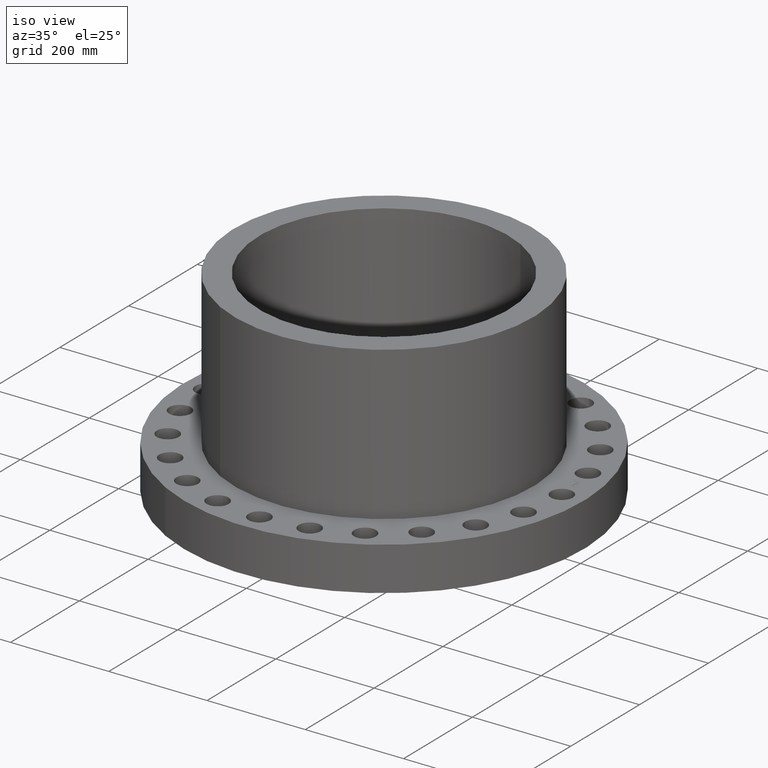
[diagram: clean part render]
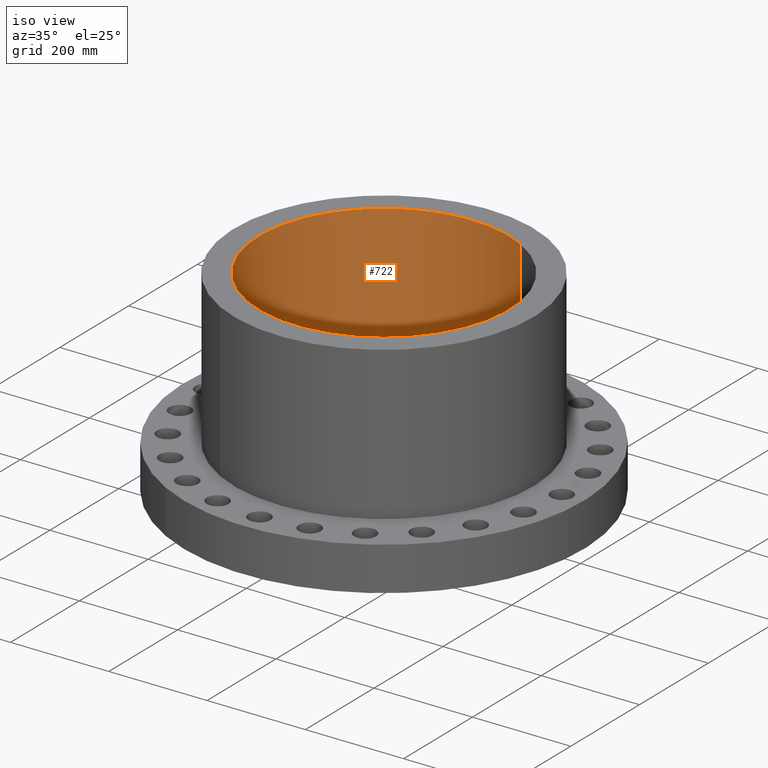
[diagram: same view with one face highlighted and labeled with its STEP entity id]
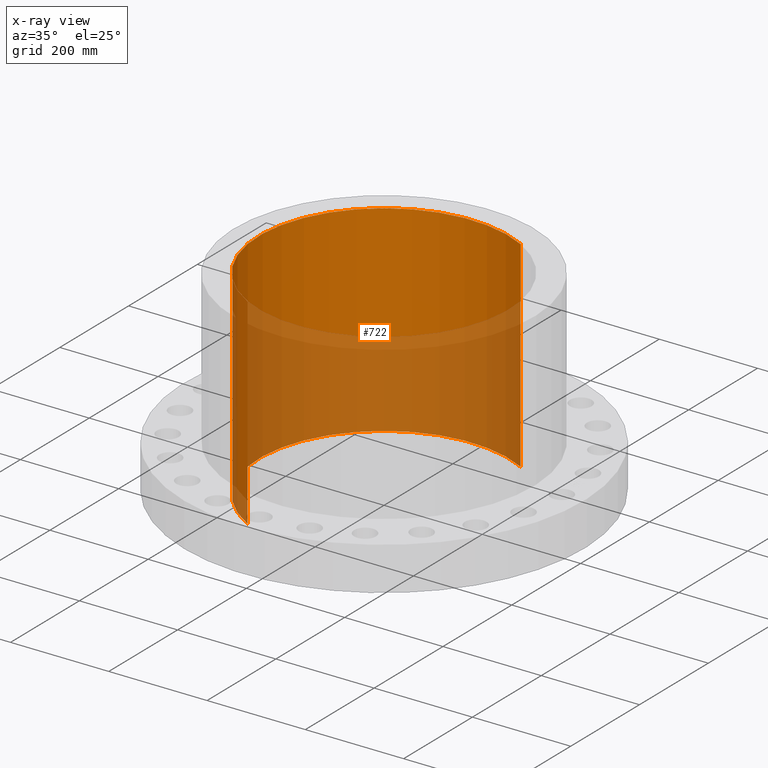
[diagram: x-ray of the same camera — body ghosted, the highlighted face saturated]
A machine part, iso view. The second image highlights one B-rep face of the part: STEP entity #722.
The next image is the same camera in x-ray: the body ghosted, the highlighted face saturated — about 50% of this face is hidden behind the body in this view.
In plain terms, the highlighted cylindrical surface (partial cylindrical patch) has radius 254 mm, axis along (0, 0, -1).
Its self-contained STEP definition (entity closure, byte-faithful):
#663=AXIS2_PLACEMENT_3D('Circle Axis2P3D',#661,#662,$) ;
#683=AXIS2_PLACEMENT_3D('Cylinder Axis2P3D',#680,#681,#682) ;
#713=AXIS2_PLACEMENT_3D('Circle Axis2P3D',#711,#712,$) ;
#661=CARTESIAN_POINT('Axis2P3D Location',(0.,0.,15.7500000001)) ;
#665=CARTESIAN_POINT('Vertex',(-4.79425538606,-8.77582561894,15.7500000001)) ;
#667=CARTESIAN_POINT('Vertex',(4.79425538606,8.77582561894,15.7500000001)) ;
#680=CARTESIAN_POINT('Axis2P3D Location',(0.,0.,7.68750000003)) ;
#685=CARTESIAN_POINT('Line Origine',(4.79425538606,8.77582561894,7.68750000003)) ;
#689=CARTESIAN_POINT('Vertex',(4.79425538606,8.77582561894,-0.375000000001)) ;
#696=CARTESIAN_POINT('Vertex',(-4.79425538606,-8.77582561894,-0.375000000001)) ;
#699=CARTESIAN_POINT('Line Origine',(-4.79425538606,-8.77582561894,7.68750000003)) ;
#711=CARTESIAN_POINT('Axis2P3D Location',(0.,0.,-0.375000000002)) ;
#662=DIRECTION('Axis2P3D Direction',(0.,0.,-0.0393700787402)) ;
#681=DIRECTION('Axis2P3D Direction',(0.,0.,-0.0393700787402)) ;
#682=DIRECTION('Axis2P3D XDirection',(-0.0188750212049,-0.0345504945626,0.)) ;
#686=DIRECTION('Vector Direction',(0.,0.,-0.0393700787402)) ;
#700=DIRECTION('Vector Direction',(0.,0.,-0.0393700787402)) ;
#712=DIRECTION('Axis2P3D Direction',(0.,0.,-0.0393700787402)) ;
#687=VECTOR('Line Direction',#686,0.0393700787402) ;
#701=VECTOR('Line Direction',#700,0.0393700787402) ;
#717=ORIENTED_EDGE('',*,*,#669,.F.) ;
#718=ORIENTED_EDGE('',*,*,#703,.T.) ;
#719=ORIENTED_EDGE('',*,*,#715,.T.) ;
#720=ORIENTED_EDGE('',*,*,#691,.F.) ;
#722=ADVANCED_FACE('PartBody',(#721),#684,.F.) ;
#664=CIRCLE('generated circle',#663,10.) ;
#714=CIRCLE('generated circle',#713,10.) ;
#684=CYLINDRICAL_SURFACE('generated cylinder',#683,10.) ;
#669=EDGE_CURVE('',#666,#668,#664,.T.) ;
#691=EDGE_CURVE('',#668,#690,#688,.T.) ;
#703=EDGE_CURVE('',#666,#697,#702,.T.) ;
#715=EDGE_CURVE('',#697,#690,#714,.T.) ;
#716=EDGE_LOOP('',(#717,#718,#719,#720)) ;
#721=FACE_OUTER_BOUND('',#716,.T.) ;
#688=LINE('Line',#685,#687) ;
#702=LINE('Line',#699,#701) ;
#666=VERTEX_POINT('',#665) ;
#668=VERTEX_POINT('',#667) ;
#690=VERTEX_POINT('',#689) ;
#697=VERTEX_POINT('',#696) ;